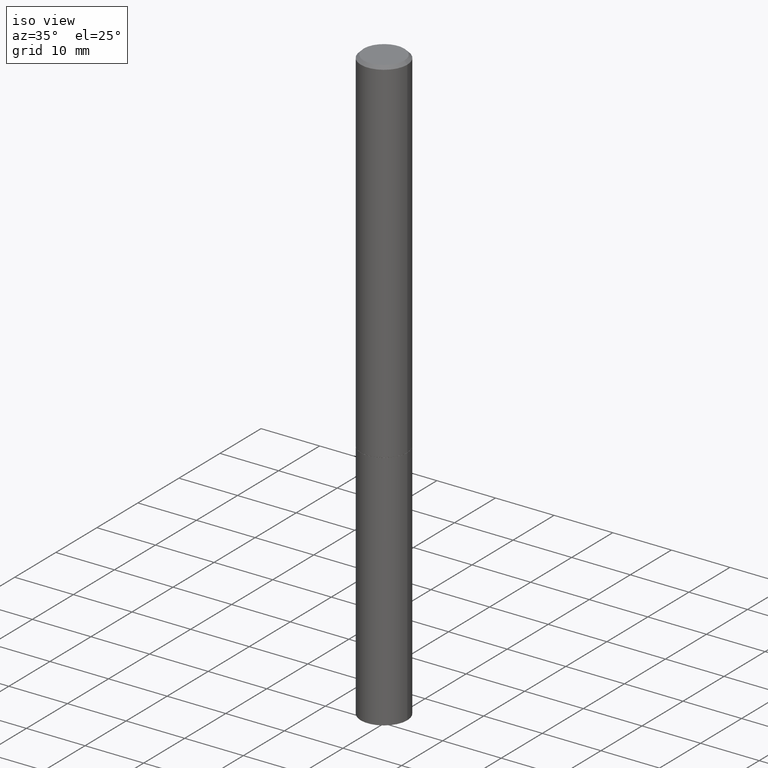
[diagram: clean part render]
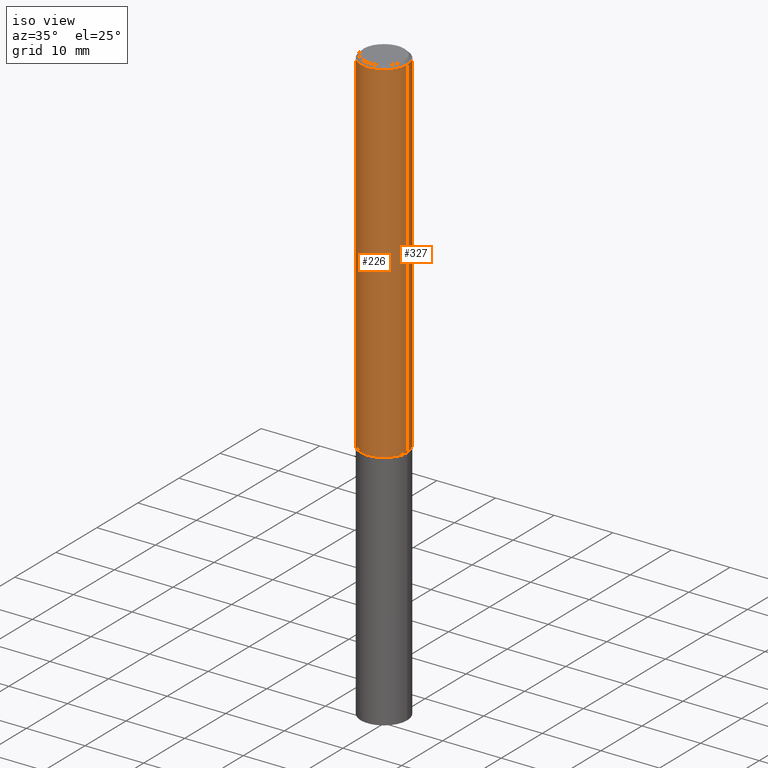
[diagram: same view with one multi-face feature highlighted, each face labeled with its STEP entity id]
A machine part, iso view. The highlighted faces form ONE feature: a constant-radius fillet chain: 2 tangent blend faces with common blend radius 3.9687 mm. The faces share edges in the B-rep.
Their STEP definitions:
[1] entity #226 (Cylinder):
#4 = VECTOR ( 'NONE', #180, 39.37007874015748143 ) ;
#13 = ORIENTED_EDGE ( 'NONE', *, *, #286, .T. ) ;
#15 = VERTEX_POINT ( 'NONE', #248 ) ;
#32 = CARTESIAN_POINT ( 'NONE',  ( 0.1562500000000000000, -9.379864616802105495E-15, -2.373999999999999666 ) ) ;
#33 = ORIENTED_EDGE ( 'NONE', *, *, #294, .F. ) ;
#72 = VERTEX_POINT ( 'NONE', #347 ) ;
#78 = VECTOR ( 'NONE', #210, 39.37007874015748143 ) ;
#79 = DIRECTION ( 'NONE',  ( 1.000000000000000000, -6.982962677686266711E-15, 4.876176775795936353E-29 ) ) ;
#84 = DIRECTION ( 'NONE',  ( -2.445468806185136597E-29, 3.491481338843145583E-15, 1.000000000000000000 ) ) ;
#88 = CIRCLE ( 'NONE', #340, 0.1562500000000000000 ) ;
#100 = LINE ( 'NONE', #156, #78 ) ;
#109 = CARTESIAN_POINT ( 'NONE',  ( 0.000000000000000000, 0.000000000000000000, 0.000000000000000000 ) ) ;
#127 = LINE ( 'NONE', #324, #4 ) ;
#128 = ORIENTED_EDGE ( 'NONE', *, *, #231, .F. ) ;
#133 = ORIENTED_EDGE ( 'NONE', *, *, #219, .T. ) ;
#147 = DIRECTION ( 'NONE',  ( 1.000000000000000000, -6.982962677686267499E-15, 0.000000000000000000 ) ) ;
#149 = EDGE_LOOP ( 'NONE', ( #33, #133, #13, #128 ) ) ;
#156 = CARTESIAN_POINT ( 'NONE',  ( 0.1562499999999998612, -1.091087918388478187E-15, 7.619026212181143371E-30 ) ) ;
#168 = FACE_OUTER_BOUND ( 'NONE', #149, .T. ) ;
#180 = DIRECTION ( 'NONE',  ( -2.445468806185136877E-29, 3.491481338843145188E-15, 1.000000000000000000 ) ) ;
#194 = VERTEX_POINT ( 'NONE', #32 ) ;
#210 = DIRECTION ( 'NONE',  ( -2.445468806185136877E-29, 3.491481338843145188E-15, 1.000000000000000000 ) ) ;
#219 = EDGE_CURVE ( 'NONE', #274, #194, #88, .T. ) ;
#222 = AXIS2_PLACEMENT_3D ( 'NONE', #311, #84, #147 ) ;
#223 = DIRECTION ( 'NONE',  ( -2.445468806185136597E-29, 3.491481338843145583E-15, 1.000000000000000000 ) ) ;
#226 = ADVANCED_FACE ( 'NONE', ( #168 ), #279, .T. ) ;
#231 = EDGE_CURVE ( 'NONE', #72, #15, #295, .T. ) ;
#234 = DIRECTION ( 'NONE',  ( 1.000000000000000000, -6.982962677686262766E-15, 0.000000000000000000 ) ) ;
#235 = CARTESIAN_POINT ( 'NONE',  ( -0.1562500000000000000, -3.069080137970085114E-15, -2.373999999999999666 ) ) ;
#248 = CARTESIAN_POINT ( 'NONE',  ( 0.1562499999999996947, -1.141782438928662738E-15, -0.02000000000000003164 ) ) ;
#261 = CARTESIAN_POINT ( 'NONE',  ( 5.805542945883513814E-29, -8.288776698413627111E-15, -2.373999999999999666 ) ) ;
#271 = AXIS2_PLACEMENT_3D ( 'NONE', #109, #223, #79 ) ;
#274 = VERTEX_POINT ( 'NONE', #235 ) ;
#279 = CYLINDRICAL_SURFACE ( 'NONE', #271, 0.1562499999999998612 ) ;
#286 = EDGE_CURVE ( 'NONE', #194, #15, #100, .T. ) ;
#294 = EDGE_CURVE ( 'NONE', #274, #72, #127, .T. ) ;
#295 = CIRCLE ( 'NONE', #222, 0.1562499999999996947 ) ;
#311 = CARTESIAN_POINT ( 'NONE',  ( 4.890937612370280165E-31, -6.982962677686301470E-17, -0.02000000000000003164 ) ) ;
#324 = CARTESIAN_POINT ( 'NONE',  ( -0.1562499999999998612, 1.110223024625155554E-15, -7.685836078523284153E-30 ) ) ;
#340 = AXIS2_PLACEMENT_3D ( 'NONE', #261, #342, #234 ) ;
#342 = DIRECTION ( 'NONE',  ( -2.445468806185136597E-29, 3.491481338843145583E-15, 1.000000000000000000 ) ) ;
#347 = CARTESIAN_POINT ( 'NONE',  ( -0.1562499999999996947, 1.021258291611614100E-15, -0.02000000000000003164 ) ) ;
[2] entity #327 (Cylinder):
#4 = VECTOR ( 'NONE', #180, 39.37007874015748143 ) ;
#15 = VERTEX_POINT ( 'NONE', #248 ) ;
#19 = ORIENTED_EDGE ( 'NONE', *, *, #286, .F. ) ;
#32 = CARTESIAN_POINT ( 'NONE',  ( 0.1562500000000000000, -9.379864616802105495E-15, -2.373999999999999666 ) ) ;
#39 = CYLINDRICAL_SURFACE ( 'NONE', #67, 0.1562499999999998612 ) ;
#65 = CARTESIAN_POINT ( 'NONE',  ( 0.000000000000000000, 0.000000000000000000, 0.000000000000000000 ) ) ;
#67 = AXIS2_PLACEMENT_3D ( 'NONE', #65, #185, #301 ) ;
#69 = ORIENTED_EDGE ( 'NONE', *, *, #129, .T. ) ;
#72 = VERTEX_POINT ( 'NONE', #347 ) ;
#78 = VECTOR ( 'NONE', #210, 39.37007874015748143 ) ;
#93 = EDGE_LOOP ( 'NONE', ( #69, #267, #191, #19 ) ) ;
#100 = LINE ( 'NONE', #156, #78 ) ;
#119 = DIRECTION ( 'NONE',  ( -2.445468806185136597E-29, 3.491481338843145583E-15, 1.000000000000000000 ) ) ;
#127 = LINE ( 'NONE', #324, #4 ) ;
#129 = EDGE_CURVE ( 'NONE', #194, #274, #332, .T. ) ;
#142 = AXIS2_PLACEMENT_3D ( 'NONE', #353, #119, #155 ) ;
#155 = DIRECTION ( 'NONE',  ( 1.000000000000000000, -6.982962677686267499E-15, 0.000000000000000000 ) ) ;
#156 = CARTESIAN_POINT ( 'NONE',  ( 0.1562499999999998612, -1.091087918388478187E-15, 7.619026212181143371E-30 ) ) ;
#178 = AXIS2_PLACEMENT_3D ( 'NONE', #323, #282, #179 ) ;
#179 = DIRECTION ( 'NONE',  ( 1.000000000000000000, -6.982962677686262766E-15, 0.000000000000000000 ) ) ;
#180 = DIRECTION ( 'NONE',  ( -2.445468806185136877E-29, 3.491481338843145188E-15, 1.000000000000000000 ) ) ;
#185 = DIRECTION ( 'NONE',  ( -2.445468806185136597E-29, 3.491481338843145583E-15, 1.000000000000000000 ) ) ;
#191 = ORIENTED_EDGE ( 'NONE', *, *, #269, .F. ) ;
#194 = VERTEX_POINT ( 'NONE', #32 ) ;
#203 = CIRCLE ( 'NONE', #142, 0.1562499999999996947 ) ;
#210 = DIRECTION ( 'NONE',  ( -2.445468806185136877E-29, 3.491481338843145188E-15, 1.000000000000000000 ) ) ;
#235 = CARTESIAN_POINT ( 'NONE',  ( -0.1562500000000000000, -3.069080137970085114E-15, -2.373999999999999666 ) ) ;
#248 = CARTESIAN_POINT ( 'NONE',  ( 0.1562499999999996947, -1.141782438928662738E-15, -0.02000000000000003164 ) ) ;
#267 = ORIENTED_EDGE ( 'NONE', *, *, #294, .T. ) ;
#269 = EDGE_CURVE ( 'NONE', #15, #72, #203, .T. ) ;
#274 = VERTEX_POINT ( 'NONE', #235 ) ;
#282 = DIRECTION ( 'NONE',  ( -2.445468806185136597E-29, 3.491481338843145583E-15, 1.000000000000000000 ) ) ;
#286 = EDGE_CURVE ( 'NONE', #194, #15, #100, .T. ) ;
#294 = EDGE_CURVE ( 'NONE', #274, #72, #127, .T. ) ;
#298 = FACE_OUTER_BOUND ( 'NONE', #93, .T. ) ;
#301 = DIRECTION ( 'NONE',  ( 1.000000000000000000, -6.982962677686266711E-15, 4.876176775795936353E-29 ) ) ;
#323 = CARTESIAN_POINT ( 'NONE',  ( 5.805542945883513814E-29, -8.288776698413627111E-15, -2.373999999999999666 ) ) ;
#324 = CARTESIAN_POINT ( 'NONE',  ( -0.1562499999999998612, 1.110223024625155554E-15, -7.685836078523284153E-30 ) ) ;
#327 = ADVANCED_FACE ( 'NONE', ( #298 ), #39, .T. ) ;
#332 = CIRCLE ( 'NONE', #178, 0.1562500000000000000 ) ;
#347 = CARTESIAN_POINT ( 'NONE',  ( -0.1562499999999996947, 1.021258291611614100E-15, -0.02000000000000003164 ) ) ;
#353 = CARTESIAN_POINT ( 'NONE',  ( 4.890937612370280165E-31, -6.982962677686301470E-17, -0.02000000000000003164 ) ) ;